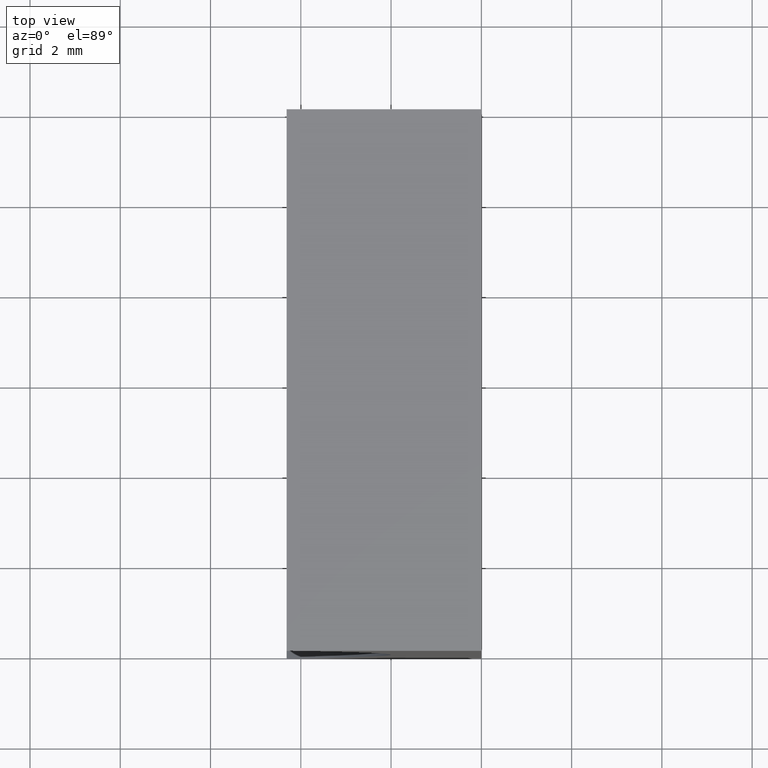
[diagram: clean part render]
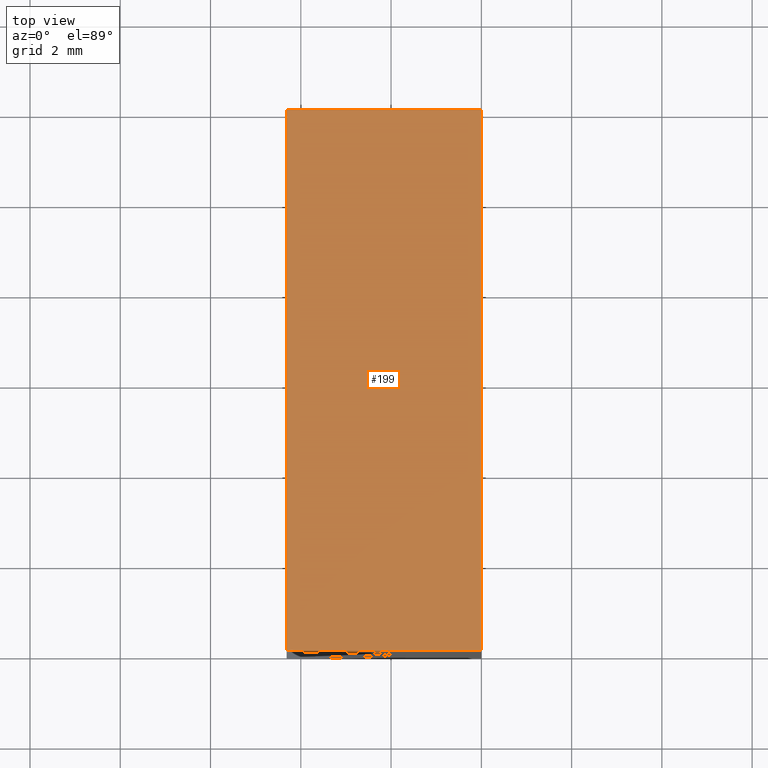
[diagram: same view with one face highlighted and labeled with its STEP entity id]
A machine part, top view. The second image highlights one B-rep face of the part: STEP entity #199.
In plain terms, the highlighted planar face has unit normal (0, 0, -1).
Its self-contained STEP definition (entity closure, byte-faithful):
#2 = VERTEX_POINT ( 'NONE', #173 ) ;
#7 = FACE_OUTER_BOUND ( 'NONE', #54, .T. ) ;
#15 = VECTOR ( 'NONE', #82, 1000.000000000000000 ) ;
#23 = VERTEX_POINT ( 'NONE', #167 ) ;
#29 = VECTOR ( 'NONE', #120, 1000.000000000000000 ) ;
#34 = DIRECTION ( 'NONE',  ( -0.0000000000000000000, -1.000000000000000000, -0.0000000000000000000 ) ) ;
#40 = LINE ( 'NONE', #123, #159 ) ;
#42 = ORIENTED_EDGE ( 'NONE', *, *, #65, .F. ) ;
#43 = EDGE_CURVE ( 'NONE', #50, #2, #155, .T. ) ;
#46 = CARTESIAN_POINT ( 'NONE',  ( -4.313401361089087300, 0.0000000000000000000, 9.999999999999998200 ) ) ;
#47 = LINE ( 'NONE', #180, #15 ) ;
#50 = VERTEX_POINT ( 'NONE', #132 ) ;
#54 = EDGE_LOOP ( 'NONE', ( #60, #153, #42, #140 ) ) ;
#57 = PLANE ( 'NONE',  #201 ) ;
#60 = ORIENTED_EDGE ( 'NONE', *, *, #171, .T. ) ;
#65 = EDGE_CURVE ( 'NONE', #23, #50, #117, .T. ) ;
#74 = EDGE_CURVE ( 'NONE', #23, #125, #47, .T. ) ;
#82 = DIRECTION ( 'NONE',  ( -0.0000000000000000000, -1.000000000000000000, -0.0000000000000000000 ) ) ;
#84 = CARTESIAN_POINT ( 'NONE',  ( 6.123233995736766300E-016, 12.00000000000000000, 10.00000000000000000 ) ) ;
#101 = CARTESIAN_POINT ( 'NONE',  ( 6.123233995736766300E-016, 12.00000000000000000, 10.00000000000000000 ) ) ;
#106 = DIRECTION ( 'NONE',  ( 1.000000000000000000, -0.0000000000000000000, 4.021706608676934700E-016 ) ) ;
#116 = DIRECTION ( 'NONE',  ( -1.000000000000000000, 0.0000000000000000000, -4.021706608676934700E-016 ) ) ;
#117 = LINE ( 'NONE', #151, #29 ) ;
#120 = DIRECTION ( 'NONE',  ( 1.000000000000000000, -0.0000000000000000000, 4.021706608676934700E-016 ) ) ;
#123 = CARTESIAN_POINT ( 'NONE',  ( 6.123233995736766300E-016, 0.0000000000000000000, 10.00000000000000000 ) ) ;
#125 = VERTEX_POINT ( 'NONE', #46 ) ;
#132 = CARTESIAN_POINT ( 'NONE',  ( 6.123233995736766300E-016, 12.00000000000000000, 10.00000000000000000 ) ) ;
#140 = ORIENTED_EDGE ( 'NONE', *, *, #74, .T. ) ;
#151 = CARTESIAN_POINT ( 'NONE',  ( 6.123233995736766300E-016, 12.00000000000000000, 10.00000000000000000 ) ) ;
#152 = DIRECTION ( 'NONE',  ( 4.021706608676934700E-016, 0.0000000000000000000, -1.000000000000000000 ) ) ;
#153 = ORIENTED_EDGE ( 'NONE', *, *, #43, .F. ) ;
#155 = LINE ( 'NONE', #84, #163 ) ;
#159 = VECTOR ( 'NONE', #106, 1000.000000000000000 ) ;
#163 = VECTOR ( 'NONE', #34, 1000.000000000000000 ) ;
#167 = CARTESIAN_POINT ( 'NONE',  ( -4.313401361089087300, 12.00000000000000000, 9.999999999999998200 ) ) ;
#171 = EDGE_CURVE ( 'NONE', #125, #2, #40, .T. ) ;
#173 = CARTESIAN_POINT ( 'NONE',  ( 6.123233995736766300E-016, 0.0000000000000000000, 10.00000000000000000 ) ) ;
#180 = CARTESIAN_POINT ( 'NONE',  ( -4.313401361089087300, 12.00000000000000000, 9.999999999999998200 ) ) ;
#199 = ADVANCED_FACE ( 'NONE', ( #7 ), #57, .F. ) ;
#201 = AXIS2_PLACEMENT_3D ( 'NONE', #101, #152, #116 ) ;